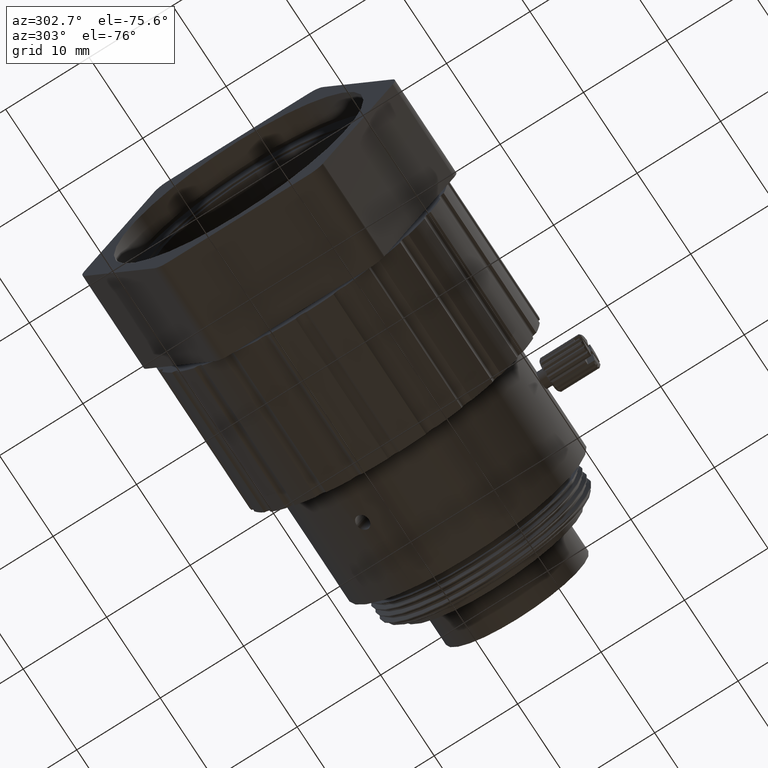
[diagram: clean part render]
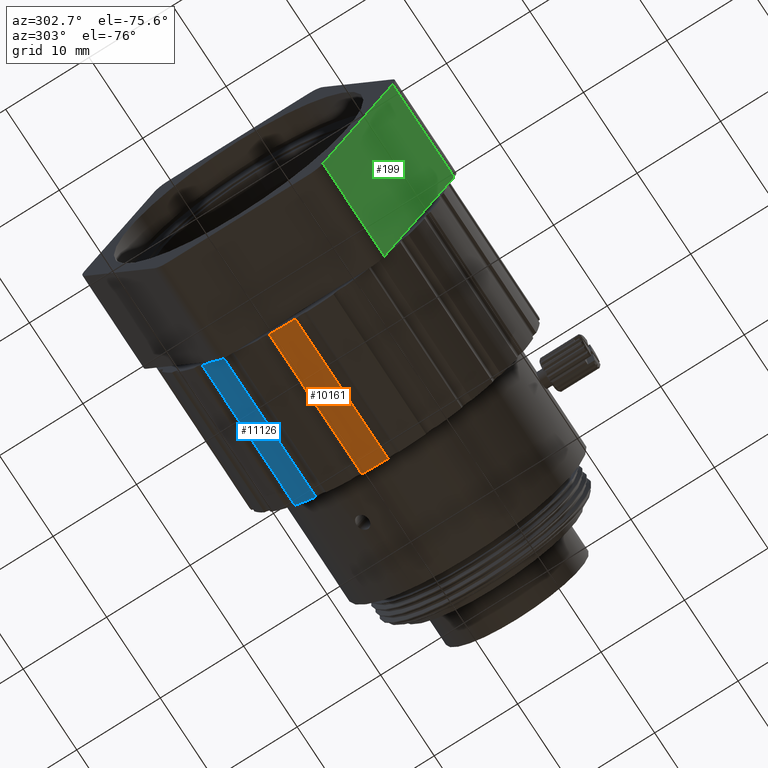
[diagram: same view with three faces highlighted in distinct colors, each labeled with its STEP entity id]
A machine part, auxiliary view with three faces highlighted in distinct colors.
Their STEP definitions:

[orange] entity #10161 — the highlighted cylindrical surface (partial cylindrical patch) has radius 17.5 mm, axis along (1, -0, -0).
#556 = DIRECTION ( 'NONE',  ( 1.000000000000000000, -0.000000000000000000, -0.000000000000000000 ) ) ;
#899 = AXIS2_PLACEMENT_3D ( 'NONE', #13814, #556, #10598 ) ;
#1164 = FACE_OUTER_BOUND ( 'NONE', #2675, .T. ) ;
#1333 = LINE ( 'NONE', #11379, #10553 ) ;
#1979 = DIRECTION ( 'NONE',  ( 1.000000000000000000, -0.000000000000000000, -0.000000000000000000 ) ) ;
#2124 = EDGE_CURVE ( 'NONE', #7844, #4658, #13381, .T. ) ;
#2516 = ORIENTED_EDGE ( 'NONE', *, *, #8996, .F. ) ;
#2542 = CIRCLE ( 'NONE', #9518, 17.50000270789442425 ) ;
#2675 = EDGE_LOOP ( 'NONE', ( #7847, #2516, #4458, #7758 ) ) ;
#4458 = ORIENTED_EDGE ( 'NONE', *, *, #2124, .T. ) ;
#4601 = CARTESIAN_POINT ( 'NONE',  ( 10434.38935006260726, -3042.645899989032841, -17.48599161473384811 ) ) ;
#4658 = VERTEX_POINT ( 'NONE', #4601 ) ;
#5141 = EDGE_CURVE ( 'NONE', #5635, #9385, #1333, .T. ) ;
#5635 = VERTEX_POINT ( 'NONE', #12638 ) ;
#5730 = CYLINDRICAL_SURFACE ( 'NONE', #11707, 17.50000270789442425 ) ;
#6623 = CARTESIAN_POINT ( 'NONE',  ( 10451.68731230182857, -3039.496610037497703, -17.07137972698728134 ) ) ;
#6735 = DIRECTION ( 'NONE',  ( 1.000000000000000000, -0.000000000000000000, -0.000000000000000000 ) ) ;
#7153 = CIRCLE ( 'NONE', #899, 17.50000270789442425 ) ;
#7473 = DIRECTION ( 'NONE',  ( 0.000000000000000000, 0.000000000000000000, -1.000000000000000000 ) ) ;
#7758 = ORIENTED_EDGE ( 'NONE', *, *, #8320, .T. ) ;
#7816 = CARTESIAN_POINT ( 'NONE',  ( 10473.70570216309352, -3042.645899989032841, -17.48599161473384456 ) ) ;
#7844 = VERTEX_POINT ( 'NONE', #13662 ) ;
#7847 = ORIENTED_EDGE ( 'NONE', *, *, #5141, .T. ) ;
#8320 = EDGE_CURVE ( 'NONE', #4658, #5635, #7153, .T. ) ;
#8996 = EDGE_CURVE ( 'NONE', #7844, #9385, #2542, .T. ) ;
#9106 = DIRECTION ( 'NONE',  ( 1.000000000000000000, -0.000000000000000000, -0.000000000000000000 ) ) ;
#9385 = VERTEX_POINT ( 'NONE', #6623 ) ;
#9518 = AXIS2_PLACEMENT_3D ( 'NONE', #9757, #1979, #7473 ) ;
#9757 = CARTESIAN_POINT ( 'NONE',  ( 10451.68731230182857, -3043.346037136861469, 0.000000000000000000 ) ) ;
#10161 = ADVANCED_FACE ( 'NONE', ( #1164 ), #5730, .T. ) ;
#10184 = CARTESIAN_POINT ( 'NONE',  ( 10473.70570216309352, -3043.346037136861469, 0.000000000000000000 ) ) ;
#10553 = VECTOR ( 'NONE', #9106, 1000.000000000000000 ) ;
#10598 = DIRECTION ( 'NONE',  ( 0.000000000000000000, 0.000000000000000000, -1.000000000000000000 ) ) ;
#11379 = CARTESIAN_POINT ( 'NONE',  ( 10473.70570216309352, -3039.496610037497703, -17.07137972698727779 ) ) ;
#11426 = DIRECTION ( 'NONE',  ( 0.000000000000000000, 0.000000000000000000, -1.000000000000000000 ) ) ;
#11707 = AXIS2_PLACEMENT_3D ( 'NONE', #10184, #6735, #11426 ) ;
#12282 = DIRECTION ( 'NONE',  ( -1.000000000000000000, 0.000000000000000000, 0.000000000000000000 ) ) ;
#12638 = CARTESIAN_POINT ( 'NONE',  ( 10434.38935006260726, -3039.496610037497703, -17.07137972698728134 ) ) ;
#12731 = VECTOR ( 'NONE', #12282, 1000.000000000000000 ) ;
#13381 = LINE ( 'NONE', #7816, #12731 ) ;
#13662 = CARTESIAN_POINT ( 'NONE',  ( 10451.68731230182857, -3042.645899989032841, -17.48599161473384811 ) ) ;
#13814 = CARTESIAN_POINT ( 'NONE',  ( 10434.38935006260726, -3043.346037136861469, 0.000000000000000000 ) ) ;

[blue] entity #11126 — the highlighted cylindrical surface (partial cylindrical patch) has radius 17.5 mm, axis along (1, -0, -0).
#7 = CARTESIAN_POINT ( 'NONE',  ( 10434.38935006260726, -3033.996704773341662, -14.79324437480675947 ) ) ;
#56 = LINE ( 'NONE', #4489, #1071 ) ;
#503 = CYLINDRICAL_SURFACE ( 'NONE', #11015, 17.50000270789442425 ) ;
#687 = VERTEX_POINT ( 'NONE', #11365 ) ;
#1071 = VECTOR ( 'NONE', #8930, 1000.000000000000000 ) ;
#1347 = AXIS2_PLACEMENT_3D ( 'NONE', #3534, #3610, #10168 ) ;
#1438 = VERTEX_POINT ( 'NONE', #10274 ) ;
#1894 = DIRECTION ( 'NONE',  ( 0.000000000000000000, 0.000000000000000000, -1.000000000000000000 ) ) ;
#2664 = EDGE_CURVE ( 'NONE', #1438, #687, #7589, .T. ) ;
#3100 = VERTEX_POINT ( 'NONE', #3747 ) ;
#3531 = EDGE_CURVE ( 'NONE', #3100, #687, #56, .T. ) ;
#3534 = CARTESIAN_POINT ( 'NONE',  ( 10451.68731230182857, -3043.346037136861469, 0.000000000000000000 ) ) ;
#3610 = DIRECTION ( 'NONE',  ( 1.000000000000000000, -0.000000000000000000, -0.000000000000000000 ) ) ;
#3747 = CARTESIAN_POINT ( 'NONE',  ( 10434.38935006260726, -3031.476645615302004, -12.85953497153950309 ) ) ;
#3984 = CARTESIAN_POINT ( 'NONE',  ( 10473.70570216309352, -3043.346037136861469, 0.000000000000000000 ) ) ;
#4281 = DIRECTION ( 'NONE',  ( 1.000000000000000000, -0.000000000000000000, -0.000000000000000000 ) ) ;
#4489 = CARTESIAN_POINT ( 'NONE',  ( 10473.70570216309352, -3031.476645615302004, -12.85953497153949243 ) ) ;
#5008 = FACE_OUTER_BOUND ( 'NONE', #6814, .T. ) ;
#5451 = DIRECTION ( 'NONE',  ( 0.000000000000000000, 0.000000000000000000, -1.000000000000000000 ) ) ;
#5626 = CIRCLE ( 'NONE', #13788, 17.50000270789442425 ) ;
#5722 = DIRECTION ( 'NONE',  ( -1.000000000000000000, 0.000000000000000000, 0.000000000000000000 ) ) ;
#6456 = EDGE_CURVE ( 'NONE', #1438, #7192, #10100, .T. ) ;
#6814 = EDGE_LOOP ( 'NONE', ( #10358, #8160, #9059, #14061 ) ) ;
#7192 = VERTEX_POINT ( 'NONE', #7 ) ;
#7589 = CIRCLE ( 'NONE', #1347, 17.50000270789442425 ) ;
#7624 = CARTESIAN_POINT ( 'NONE',  ( 10434.38935006260726, -3043.346037136861469, 0.000000000000000000 ) ) ;
#8160 = ORIENTED_EDGE ( 'NONE', *, *, #2664, .F. ) ;
#8930 = DIRECTION ( 'NONE',  ( 1.000000000000000000, -0.000000000000000000, -0.000000000000000000 ) ) ;
#9059 = ORIENTED_EDGE ( 'NONE', *, *, #6456, .T. ) ;
#9460 = DIRECTION ( 'NONE',  ( 1.000000000000000000, -0.000000000000000000, -0.000000000000000000 ) ) ;
#10100 = LINE ( 'NONE', #11054, #12118 ) ;
#10168 = DIRECTION ( 'NONE',  ( 0.000000000000000000, 0.000000000000000000, -1.000000000000000000 ) ) ;
#10274 = CARTESIAN_POINT ( 'NONE',  ( 10451.68731230182857, -3033.996704773341662, -14.79324437480675947 ) ) ;
#10358 = ORIENTED_EDGE ( 'NONE', *, *, #3531, .T. ) ;
#11015 = AXIS2_PLACEMENT_3D ( 'NONE', #3984, #9460, #1894 ) ;
#11054 = CARTESIAN_POINT ( 'NONE',  ( 10473.70570216309352, -3033.996704773341662, -14.79324437480675769 ) ) ;
#11126 = ADVANCED_FACE ( 'NONE', ( #5008 ), #503, .T. ) ;
#11365 = CARTESIAN_POINT ( 'NONE',  ( 10451.68731230182857, -3031.476645615302004, -12.85953497153950309 ) ) ;
#12118 = VECTOR ( 'NONE', #5722, 1000.000000000000000 ) ;
#13714 = EDGE_CURVE ( 'NONE', #7192, #3100, #5626, .T. ) ;
#13788 = AXIS2_PLACEMENT_3D ( 'NONE', #7624, #4281, #5451 ) ;
#14061 = ORIENTED_EDGE ( 'NONE', *, *, #13714, .T. ) ;

[green] entity #199 — the highlighted planar face has unit normal (0, -0.866, -0.5).
#76 = DIRECTION ( 'NONE',  ( 1.000000000000000000, 0.000000000000000000, 0.000000000000000000 ) ) ;
#182 = CARTESIAN_POINT ( 'NONE',  ( 10434.17935006260450, -3053.448388759998124, -15.49778628719747964 ) ) ;
#199 = ADVANCED_FACE ( 'NONE', ( #11021 ), #10949, .T. ) ;
#622 = EDGE_CURVE ( 'NONE', #11138, #5420, #1247, .T. ) ;
#647 = EDGE_LOOP ( 'NONE', ( #6697, #4771, #2100, #13505 ) ) ;
#901 = VECTOR ( 'NONE', #76, 1000.000000000000000 ) ;
#1247 = LINE ( 'NONE', #3488, #901 ) ;
#1885 = CARTESIAN_POINT ( 'NONE',  ( 10434.17935006260450, -3061.818689575564349, -0.9999999999999473754 ) ) ;
#2100 = ORIENTED_EDGE ( 'NONE', *, *, #8846, .T. ) ;
#2143 = DIRECTION ( 'NONE',  ( 0.000000000000000000, 0.4999999999999998890, -0.8660254037844387076 ) ) ;
#3289 = DIRECTION ( 'NONE',  ( 0.000000000000000000, -0.8660254037844387076, -0.4999999999999998890 ) ) ;
#3488 = CARTESIAN_POINT ( 'NONE',  ( 10434.69705335116123, -3053.448388759997670, -15.49778628719731799 ) ) ;
#3810 = EDGE_CURVE ( 'NONE', #12588, #6649, #4898, .T. ) ;
#3858 = DIRECTION ( 'NONE',  ( 0.000000000000000000, -0.4999999999999520384, 0.8660254037844663522 ) ) ;
#4346 = DIRECTION ( 'NONE',  ( 0.000000000000000000, 0.4999999999999998890, -0.8660254037844387076 ) ) ;
#4617 = VECTOR ( 'NONE', #3858, 1000.000000000000000 ) ;
#4771 = ORIENTED_EDGE ( 'NONE', *, *, #622, .T. ) ;
#4898 = LINE ( 'NONE', #9355, #11109 ) ;
#4937 = CARTESIAN_POINT ( 'NONE',  ( 10422.69705335116123, -3053.448388759997670, -15.49778628719735885 ) ) ;
#5420 = VERTEX_POINT ( 'NONE', #182 ) ;
#6649 = VERTEX_POINT ( 'NONE', #1885 ) ;
#6697 = ORIENTED_EDGE ( 'NONE', *, *, #7448, .T. ) ;
#7448 = EDGE_CURVE ( 'NONE', #12588, #11138, #10782, .T. ) ;
#8846 = EDGE_CURVE ( 'NONE', #5420, #6649, #12603, .T. ) ;
#9355 = CARTESIAN_POINT ( 'NONE',  ( 10434.69705335116123, -3061.818689575564804, -1.000000000000176081 ) ) ;
#9543 = CARTESIAN_POINT ( 'NONE',  ( 10434.17935006260450, -3053.448388759998579, -15.49778628719739437 ) ) ;
#10175 = AXIS2_PLACEMENT_3D ( 'NONE', #12996, #3289, #2143 ) ;
#10759 = VECTOR ( 'NONE', #4346, 1000.000000000000000 ) ;
#10782 = LINE ( 'NONE', #12008, #10759 ) ;
#10949 = PLANE ( 'NONE',  #10175 ) ;
#11021 = FACE_OUTER_BOUND ( 'NONE', #647, .T. ) ;
#11109 = VECTOR ( 'NONE', #13648, 1000.000000000000000 ) ;
#11138 = VERTEX_POINT ( 'NONE', #4937 ) ;
#11779 = CARTESIAN_POINT ( 'NONE',  ( 10422.69705335116123, -3061.818689575564804, -1.000000000000057732 ) ) ;
#12008 = CARTESIAN_POINT ( 'NONE',  ( 10422.69705335116123, -3052.871038490808132, -16.49778628719733220 ) ) ;
#12588 = VERTEX_POINT ( 'NONE', #11779 ) ;
#12603 = LINE ( 'NONE', #9543, #4617 ) ;
#12996 = CARTESIAN_POINT ( 'NONE',  ( 10434.69705335116123, -3052.871038490808132, -16.49778628719733220 ) ) ;
#13505 = ORIENTED_EDGE ( 'NONE', *, *, #3810, .F. ) ;
#13648 = DIRECTION ( 'NONE',  ( 1.000000000000000000, 0.000000000000000000, 0.000000000000000000 ) ) ;